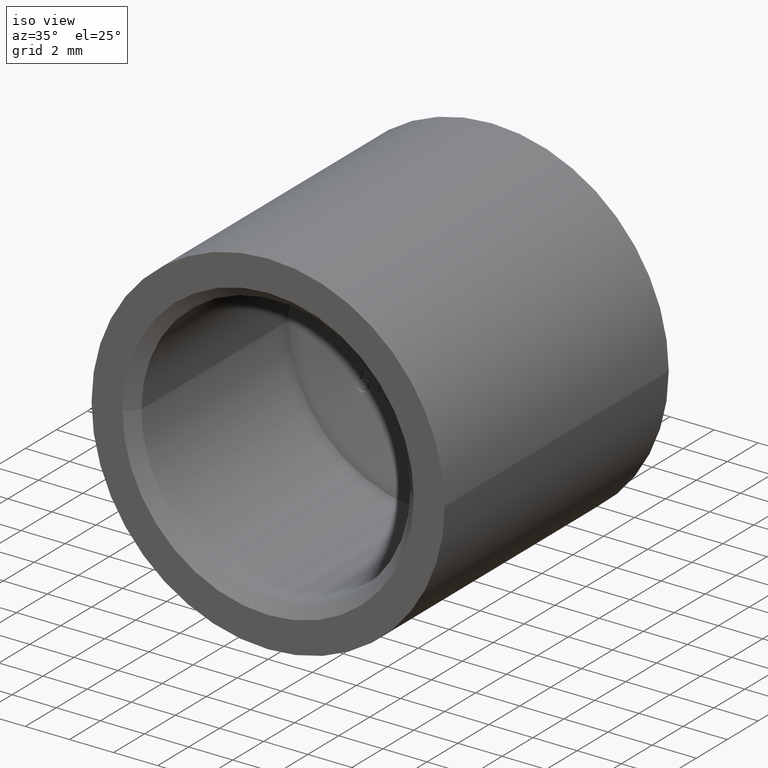
[diagram: clean part render]
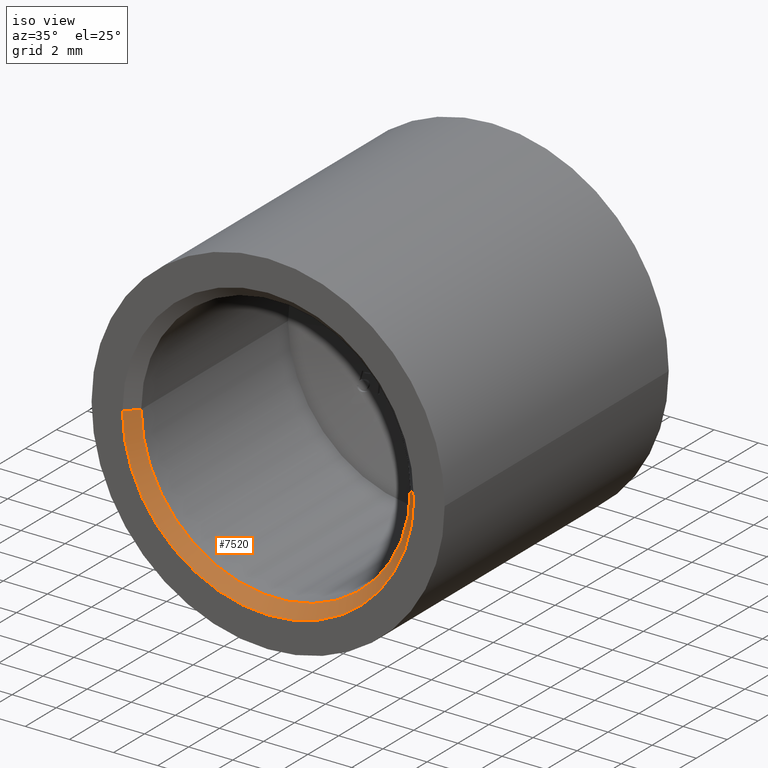
[diagram: same view with one face highlighted and labeled with its STEP entity id]
A machine part, iso view. The second image highlights one B-rep face of the part: STEP entity #7520.
In plain terms, the highlighted conical surface has half-angle 45 deg.
Its self-contained STEP definition (entity closure, byte-faithful):
#249 = ORIENTED_EDGE ( 'NONE', *, *, #11542, .F. ) ;
#562 = CARTESIAN_POINT ( 'NONE',  ( -6.600000000000002309, -4.368186603791410941E-17, 8.082668874372533978E-16 ) ) ;
#890 = ORIENTED_EDGE ( 'NONE', *, *, #3839, .F. ) ;
#963 = AXIS2_PLACEMENT_3D ( 'NONE', #12303, #8339, #12392 ) ;
#1024 = CARTESIAN_POINT ( 'NONE',  ( 6.600000000000002309, 4.368186603791410941E-17, 0.000000000000000000 ) ) ;
#1767 = AXIS2_PLACEMENT_3D ( 'NONE', #1833, #1798, #12057 ) ;
#1798 = DIRECTION ( 'NONE',  ( 6.618464551199104475E-18, -1.000000000000000000, -0.000000000000000000 ) ) ;
#1833 = CARTESIAN_POINT ( 'NONE',  ( 9.927696826798656020E-17, 0.000000000000000000, 0.000000000000000000 ) ) ;
#3101 = FACE_OUTER_BOUND ( 'NONE', #10178, .T. ) ;
#3176 = CARTESIAN_POINT ( 'NONE',  ( -6.600000000000002309, -9.034204112386780417E-17, 8.082668874372533978E-16 ) ) ;
#3277 = AXIS2_PLACEMENT_3D ( 'NONE', #9651, #6719, #11862 ) ;
#3563 = DIRECTION ( 'NONE',  ( -0.7071067811865487940, -0.7071067811865463515, 8.659560562354948882E-17 ) ) ;
#3839 = EDGE_CURVE ( 'NONE', #5686, #10775, #9707, .T. ) ;
#4057 = EDGE_CURVE ( 'NONE', #7925, #7695, #9204, .T. ) ;
#4424 = CARTESIAN_POINT ( 'NONE',  ( 6.600000000000002309, -2.978309048039577254E-18, 0.000000000000000000 ) ) ;
#5028 = VECTOR ( 'NONE', #3563, 1000.000000000000000 ) ;
#5300 = CARTESIAN_POINT ( 'NONE',  ( 6.099999999999998757, 0.5000000000000022204, 7.470345474798853307E-16 ) ) ;
#5686 = VERTEX_POINT ( 'NONE', #4424 ) ;
#6388 = ORIENTED_EDGE ( 'NONE', *, *, #7992, .T. ) ;
#6719 = DIRECTION ( 'NONE',  ( 6.618464551199104475E-18, -1.000000000000000000, -0.000000000000000000 ) ) ;
#6863 = LINE ( 'NONE', #1024, #13250 ) ;
#7520 = ADVANCED_FACE ( 'NONE', ( #3101 ), #10278, .F. ) ;
#7695 = VERTEX_POINT ( 'NONE', #5300 ) ;
#7925 = VERTEX_POINT ( 'NONE', #11878 ) ;
#7992 = EDGE_CURVE ( 'NONE', #7925, #10775, #10954, .T. ) ;
#8339 = DIRECTION ( 'NONE',  ( -6.618464551199105246E-18, 1.000000000000000000, -0.000000000000000000 ) ) ;
#9204 = CIRCLE ( 'NONE', #3277, 6.099999999999998757 ) ;
#9651 = CARTESIAN_POINT ( 'NONE',  ( 9.596773599238699217E-17, 0.5000000000000022204, 0.000000000000000000 ) ) ;
#9707 = CIRCLE ( 'NONE', #963, 6.600000000000002309 ) ;
#10178 = EDGE_LOOP ( 'NONE', ( #12997, #6388, #890, #249 ) ) ;
#10278 = CONICAL_SURFACE ( 'NONE', #1767, 6.600000000000002309, 0.7853981633974500554 ) ;
#10775 = VERTEX_POINT ( 'NONE', #3176 ) ;
#10954 = LINE ( 'NONE', #562, #5028 ) ;
#11542 = EDGE_CURVE ( 'NONE', #7695, #5686, #6863, .T. ) ;
#11862 = DIRECTION ( 'NONE',  ( -1.000000000000000000, 0.000000000000000000, 0.000000000000000000 ) ) ;
#11878 = CARTESIAN_POINT ( 'NONE',  ( -6.099999999999998757, 0.5000000000000022204, 0.000000000000000000 ) ) ;
#12057 = DIRECTION ( 'NONE',  ( 1.000000000000000000, 6.618464551199105246E-18, 0.000000000000000000 ) ) ;
#12066 = DIRECTION ( 'NONE',  ( 0.7071067811865487940, -0.7071067811865463515, 0.000000000000000000 ) ) ;
#12303 = CARTESIAN_POINT ( 'NONE',  ( 9.927696826798656020E-17, -4.666017508595368859E-17, 0.000000000000000000 ) ) ;
#12392 = DIRECTION ( 'NONE',  ( -1.000000000000000000, -6.618464551199106016E-18, 0.000000000000000000 ) ) ;
#12997 = ORIENTED_EDGE ( 'NONE', *, *, #4057, .F. ) ;
#13250 = VECTOR ( 'NONE', #12066, 1000.000000000000000 ) ;